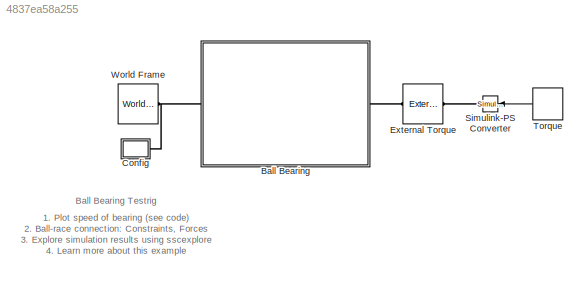
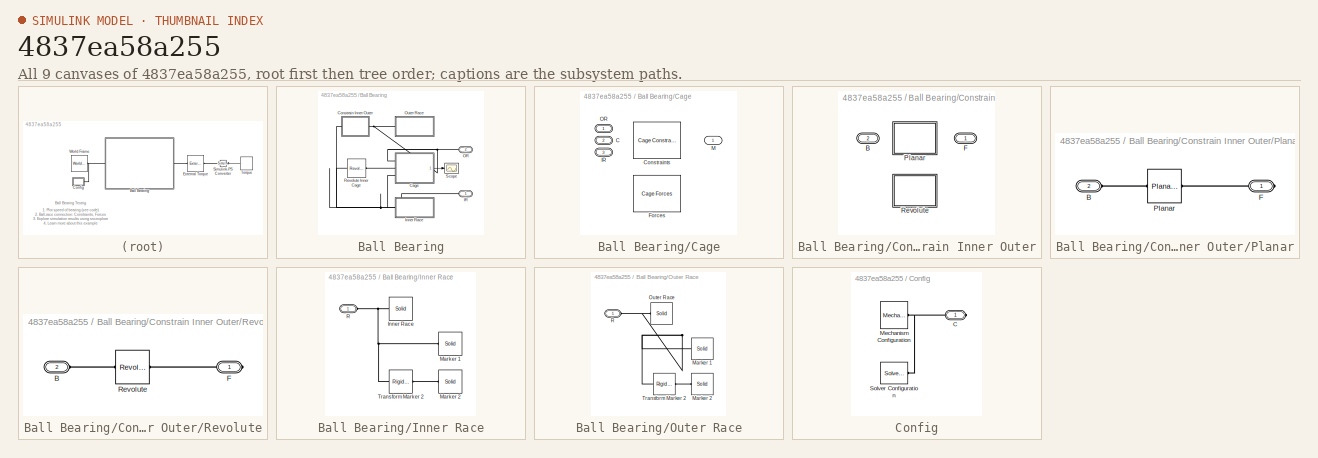
[diagram: thumbnail index - all 9 canvases of the model, root first then tree order]
MODEL slx_4837ea58a255
KIND model
CONFIG AbsTol = 1e-5
CONFIG EnableMultiTasking = on
CONFIG FixedStep = auto
CONFIG MaxStep = 1e-2
CONFIG MinStep = auto
CONFIG PreLoadFcn = sm_ball_bearing_testrig_param
CONFIG RelTol = 1e-4
CONFIG SampleTimeConstraint = Unconstrained
CONFIG Solver = ode15s
CONFIG SolverName = ode15s
CONFIG StartFcn = tic;
CONFIG StartTime = 0.0
CONFIG StopFcn = Elapsed_Sim_Time = toc;\ndisp(['Elapsed Sim Time = ' num2str(Elapsed_Sim_Time)]);\n
CONFIG StopTime = 10
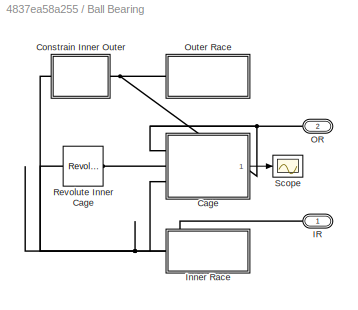
BLOCK [SubSystem] Ball Bearing
  Ports = [0, 0, 0, 0, 0, 1, 1]
  RequestExecContextInheritance = off
  Tag = PublishSubsystem
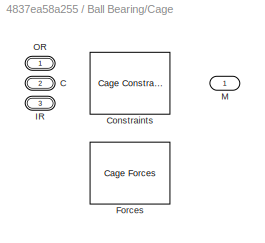
BLOCK [SubSystem] Ball Bearing/Cage
  LabelModeActiveChoice = Forces
  Ports = [0, 1, 0, 0, 0, 3]
  RequestExecContextInheritance = off
  Variant = on
  VariantControl = Variant1
  VariantControlMode = Label
BLOCK [PMIOPort] Ball Bearing/Cage/ C 
  Port = 2
  Side = Left
BLOCK [PMIOPort] Ball Bearing/Cage/ IR 
  Port = 3
  Side = Left
BLOCK [PMIOPort] Ball Bearing/Cage/ OR 
  Side = Left
BLOCK [Reference] Ball Bearing/Cage/Constraints  REF=sm_ball_bearing_testrig_lib/Cage Constraints  (lib defined in slx_456361f9252b, slx_88bfa479207e, +2 more)
  Ports = [0, 1, 0, 0, 0, 3]
  SourceBlock = sm_ball_bearing_testrig_lib/Cage Constraints
  Tag = PublishSubsystem
BLOCK [Reference] Ball Bearing/Cage/Forces  REF=sm_ball_bearing_testrig_lib/Cage Forces  (lib defined in slx_456361f9252b, slx_88bfa479207e, +2 more)
  Ports = [0, 1, 0, 0, 0, 3]
  SourceBlock = sm_ball_bearing_testrig_lib/Cage Forces
  Tag = PublishSubsystem
BLOCK [Outport] Ball Bearing/Cage/M
  IconDisplay = Port number
BLOCK [SubSystem] Ball Bearing/Constrain Inner Outer
  LabelModeActiveChoice = Planar
  Ports = [0, 0, 0, 0, 0, 1, 1]
  RequestExecContextInheritance = off
  Variant = on
  VariantControl = Variant1
  VariantControlMode = Label
BLOCK [PMIOPort] Ball Bearing/Constrain Inner Outer/ B 
  Port = 2
  Side = Left
BLOCK [PMIOPort] Ball Bearing/Constrain Inner Outer/ F 
  Side = Right
BLOCK [SubSystem] Ball Bearing/Constrain Inner Outer/Planar
  Ports = [0, 0, 0, 0, 0, 1, 1]
  RequestExecContextInheritance = off
  VariantControl = Planar
BLOCK [PMIOPort] Ball Bearing/Constrain Inner Outer/Planar/B
  Port = 2
  Side = Left
BLOCK [PMIOPort] Ball Bearing/Constrain Inner Outer/Planar/F
  Side = Right
BLOCK [Reference] Ball Bearing/Constrain Inner Outer/Planar/Planar  REF=sm_lib/Joints/Planar Joint
  Ports = [0, 0, 0, 0, 0, 1, 1]
  SourceBlock = sm_lib/Joints/Planar Joint
  SourceProductBaseCode = MS
  SourceProductName = Simscape Multibody
  SourceType = Planar Joint
BLOCK [SubSystem] Ball Bearing/Constrain Inner Outer/Revolute
  Ports = [0, 0, 0, 0, 0, 1, 1]
  RequestExecContextInheritance = off
  VariantControl = Revolute
BLOCK [PMIOPort] Ball Bearing/Constrain Inner Outer/Revolute/B
  Port = 2
  Side = Left
BLOCK [PMIOPort] Ball Bearing/Constrain Inner Outer/Revolute/F
  Side = Right
BLOCK [Reference] Ball Bearing/Constrain Inner Outer/Revolute/Revolute  REF=sm_lib/Joints/Revolute Joint
  Ports = [0, 0, 0, 0, 0, 1, 1]
  SourceBlock = sm_lib/Joints/Revolute Joint
  SourceProductBaseCode = MS
  SourceProductName = Simscape Multibody
  SourceType = Revolute Joint
BLOCK [PMIOPort] Ball Bearing/IR
  Side = Right
BLOCK [SubSystem] Ball Bearing/Inner Race
  Ports = [0, 0, 0, 0, 0, 1]
  RequestExecContextInheritance = off
BLOCK [Reference] Ball Bearing/Inner Race/Inner Race  REF=sm_lib/Body Elements/Solid
  Ports = [0, 0, 0, 0, 0, 0, 1]
  SourceBlock = sm_lib/Body Elements/Solid
  SourceProductBaseCode = MS
  SourceProductName = Simscape Multibody
  SourceType = Solid
BLOCK [Reference] Ball Bearing/Inner Race/Marker 1  REF=sm_lib/Body Elements/Solid
  Ports = [0, 0, 0, 0, 0, 0, 1]
  SourceBlock = sm_lib/Body Elements/Solid
  SourceProductBaseCode = MS
  SourceProductName = Simscape Multibody
  SourceType = Solid
BLOCK [Reference] Ball Bearing/Inner Race/Marker 2  REF=sm_lib/Body Elements/Solid
  Ports = [0, 0, 0, 0, 0, 0, 1]
  SourceBlock = sm_lib/Body Elements/Solid
  SourceProductBaseCode = MS
  SourceProductName = Simscape Multibody
  SourceType = Solid
BLOCK [PMIOPort] Ball Bearing/Inner Race/R
  Side = Left
BLOCK [Reference] Ball Bearing/Inner Race/Transform Marker 2  REF=sm_lib/Frames and
Transforms/Rigid
Transform
  Ports = [0, 0, 0, 0, 0, 1, 1]
  SourceBlock = sm_lib/Frames and\nTransforms/Rigid\nTransform
  SourceProductBaseCode = MS
  SourceProductName = Simscape Multibody
  SourceType = Rigid\nTransform
BLOCK [PMIOPort] Ball Bearing/OR
  Port = 2
  Side = Left
BLOCK [SubSystem] Ball Bearing/Outer Race
  Ports = [0, 0, 0, 0, 0, 1]
  RequestExecContextInheritance = off
  Tag = PublishSubsystem
BLOCK [Reference] Ball Bearing/Outer Race/Marker 1  REF=sm_lib/Body Elements/Solid
  Ports = [0, 0, 0, 0, 0, 0, 1]
  SourceBlock = sm_lib/Body Elements/Solid
  SourceProductBaseCode = MS
  SourceProductName = Simscape Multibody
  SourceType = Solid
BLOCK [Reference] Ball Bearing/Outer Race/Marker 2  REF=sm_lib/Body Elements/Solid
  Ports = [0, 0, 0, 0, 0, 0, 1]
  SourceBlock = sm_lib/Body Elements/Solid
  SourceProductBaseCode = MS
  SourceProductName = Simscape Multibody
  SourceType = Solid
BLOCK [Reference] Ball Bearing/Outer Race/Outer Race  REF=sm_lib/Body Elements/Solid
  Ports = [0, 0, 0, 0, 0, 0, 1]
  SourceBlock = sm_lib/Body Elements/Solid
  SourceProductBaseCode = MS
  SourceProductName = Simscape Multibody
  SourceType = Solid
BLOCK [PMIOPort] Ball Bearing/Outer Race/R
  Side = Left
BLOCK [Reference] Ball Bearing/Outer Race/Transform Marker 2  REF=sm_lib/Frames and
Transforms/Rigid
Transform
  Ports = [0, 0, 0, 0, 0, 1, 1]
  SourceBlock = sm_lib/Frames and\nTransforms/Rigid\nTransform
  SourceProductBaseCode = MS
  SourceProductName = Simscape Multibody
  SourceType = Rigid\nTransform
BLOCK [Reference] Ball Bearing/Revolute Inner Cage  REF=sm_lib/Joints/Revolute Joint
  Ports = [0, 0, 0, 0, 0, 1, 1]
  SourceBlock = sm_lib/Joints/Revolute Joint
  SourceProductBaseCode = MS
  SourceProductName = Simscape Multibody
  SourceType = Revolute Joint
BLOCK [Scope] Ball Bearing/Scope
  Floating = off
  NumInputPorts = 1
  Ports = [1]
  ScopeSpecificationString = Simulink.scopes.TimeScopeBlockCfg('CurrentConfiguration', extmgr.ConfigurationSet(extmgr.Configuration('Core','General UI',true),extmgr.Configuration('Core','Source UI',true),extmgr.Configuration('Sources','WiredSimulink',true),extmgr.Configuration('Visuals','Time Domain',true,'SerializedDisplays',{struct('MinYLimReal','-0.83158','MaxYLimReal','7.48425','YLabelReal','','MinYLimMag','0.00000','MaxY...<+1493ch>
BLOCK [SubSystem] Config
  Ports = [0, 0, 0, 0, 0, 0, 1]
  RequestExecContextInheritance = off
BLOCK [PMIOPort] Config/C
  Side = Right
BLOCK [Reference] Config/Mechanism Configuration  REF=sm_lib/Utilities/Mechanism
Configuration
  Ports = [0, 0, 0, 0, 0, 0, 1]
  SourceBlock = sm_lib/Utilities/Mechanism\nConfiguration
  SourceProductBaseCode = MS
  SourceProductName = Simscape Multibody
  SourceType = Mechanism\nConfiguration
BLOCK [Reference] Config/Solver Configuration  REF=nesl_utility/Solver
Configuration
  Ports = [0, 0, 0, 0, 0, 0, 1]
  SourceBlock = nesl_utility/Solver\nConfiguration
  SourceProductBaseCode = SS
  SourceProductName = Simscape
  SourceType = Solver\nConfiguration
BLOCK [Reference] External Torque  REF=sm_lib/Forces and
Torques/External Force
and Torque
  Ports = [0, 0, 0, 0, 0, 1, 1]
  SourceBlock = sm_lib/Forces and\nTorques/External Force\nand Torque
  SourceProductBaseCode = MS
  SourceProductName = Simscape Multibody
  SourceType = External Force\nand Torque
BLOCK [Reference] Simulink-PS Converter  REF=nesl_utility/Simulink-PS
Converter
  Ports = [1, 0, 0, 0, 0, 0, 1]
  SourceBlock = nesl_utility/Simulink-PS\nConverter
  SourceProductBaseCode = SS
  SourceProductName = Simscape
  SourceType = Simulink-PS\nConverter
BLOCK [DiscretePulseGenerator] Torque
  Amplitude = -1e-3
  Period = 20
  PhaseDelay = 1
  Ports = [0, 1]
  PulseType = Time based
  PulseWidth = 5
BLOCK [Reference] World Frame  REF=sm_lib/Frames and
Transforms/World Frame
  Ports = [0, 0, 0, 0, 0, 0, 1]
  SourceBlock = sm_lib/Frames and\nTransforms/World Frame
  SourceProductBaseCode = MS
  SourceProductName = Simscape Multibody
  SourceType = World Frame
ANNOTATION (root): 1. Plot speed of bearing ( see code ) 2. Ball-race connection: Constraints , Forces 3. Explore simulation results using sscexplore 4. Learn more about this example
ANNOTATION (root): Ball Bearing Testrig
LINE Ball Bearing/Cage:1 -> Ball Bearing/Scope:1
LINE Torque:1 -> Simulink-PS Converter:1
PNET net1: Ball Bearing/Cage:LConn1 -- Ball Bearing/Constrain Inner Outer:RConn1 -- Ball Bearing/OR:RConn1 -- Ball Bearing/Outer Race:LConn1
PLINE Ball Bearing/Cage:LConn2 -- Ball Bearing/Revolute Inner Cage:RConn1
PNET net2: Ball Bearing/Cage:LConn3 -- Ball Bearing/Constrain Inner Outer:LConn1 -- Ball Bearing/IR:RConn1 -- Ball Bearing/Inner Race:LConn1 -- Ball Bearing/Revolute Inner Cage:LConn1
PLINE Ball Bearing/Constrain Inner Outer/Planar/B:RConn1 -- Ball Bearing/Constrain Inner Outer/Planar/Planar:LConn1
PLINE Ball Bearing/Constrain Inner Outer/Planar/F:RConn1 -- Ball Bearing/Constrain Inner Outer/Planar/Planar:RConn1
PLINE Ball Bearing/Constrain Inner Outer/Revolute/B:RConn1 -- Ball Bearing/Constrain Inner Outer/Revolute/Revolute:LConn1
PLINE Ball Bearing/Constrain Inner Outer/Revolute/F:RConn1 -- Ball Bearing/Constrain Inner Outer/Revolute/Revolute:RConn1
PNET net3: Ball Bearing/Inner Race/Inner Race:RConn1 -- Ball Bearing/Inner Race/Marker 1:RConn1 -- Ball Bearing/Inner Race/R:RConn1 -- Ball Bearing/Inner Race/Transform Marker 2:LConn1
PLINE Ball Bearing/Inner Race/Marker 2:RConn1 -- Ball Bearing/Inner Race/Transform Marker 2:RConn1
PNET net4: Ball Bearing/Outer Race/Marker 1:RConn1 -- Ball Bearing/Outer Race/Outer Race:RConn1 -- Ball Bearing/Outer Race/R:RConn1 -- Ball Bearing/Outer Race/Transform Marker 2:LConn1
PLINE Ball Bearing/Outer Race/Marker 2:RConn1 -- Ball Bearing/Outer Race/Transform Marker 2:RConn1
PNET net5: Ball Bearing:LConn1 -- Config:RConn1 -- World Frame:RConn1
PLINE Ball Bearing:RConn1 -- External Torque:RConn1
PNET net6: Config/C:RConn1 -- Config/Mechanism Configuration:RConn1 -- Config/Solver Configuration:RConn1
PLINE External Torque:LConn1 -- Simulink-PS Converter:RConn1
note: PNET lines group multi-terminal physical nets as a canonical sorted terminal list (undirected conserving connections); 2-terminal nets keep the pairwise PLINE form
